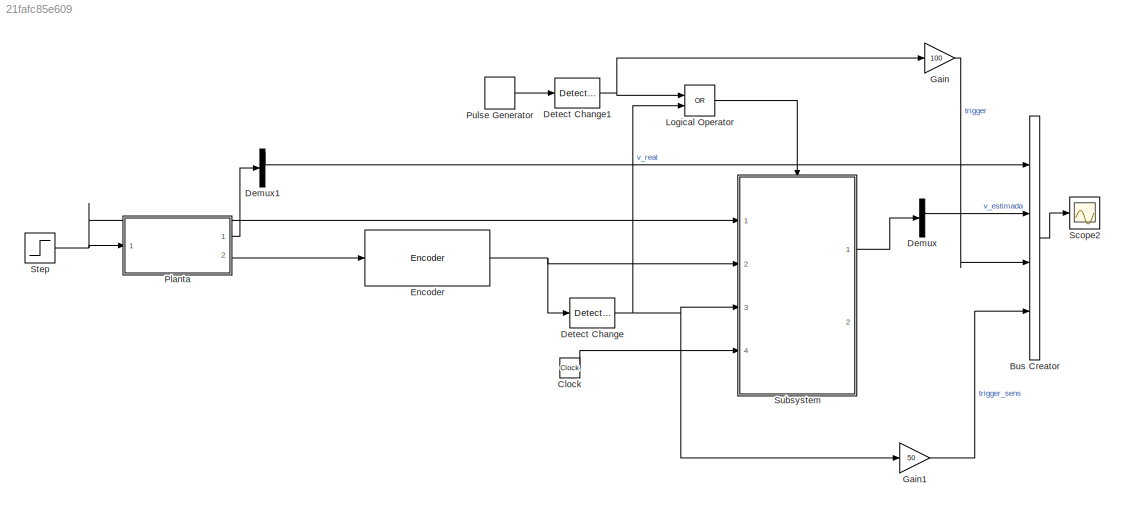
MODEL slx_21fafc85e609
KIND model
BLOCK [BusCreator] Bus Creator
  DisplayOption = bar
  Ports = [4, 1]
BLOCK [Clock] Clock
BLOCK [Demux] Demux
  DisplayOption = bar
  Outputs = 2
  Ports = [1, 2]
BLOCK [Demux] Demux1
  DisplayOption = bar
  Outputs = 2
  Ports = [1, 2]
BLOCK [Reference] Detect Change  REF=simulink/Logic and Bit
Operations/Detect
Change
  InputProcessing = Inherited
  OutDataTypeStr = boolean
  Ports = [1, 1]
  SourceBlock = simulink/Logic and Bit\nOperations/Detect\nChange
  SourceType = Detect Change
  vinit = 0
BLOCK [Reference] Detect Change1  REF=simulink/Logic and Bit
Operations/Detect
Change
  InputProcessing = Inherited
  OutDataTypeStr = boolean
  Ports = [1, 1]
  SourceBlock = simulink/Logic and Bit\nOperations/Detect\nChange
  SourceType = Detect Change
  vinit = 0
BLOCK [Reference] Encoder  REF=Encoder/Encoder
  Nr = 3
  Ports = [1, 1]
  SourceBlock = Encoder/Encoder
  SourceType = Encoder de quadratura
BLOCK [Gain] Gain
  Gain = 100
  OutDataTypeStr = double
  ParamDataTypeStr = Inherit: Inherit via internal rule
  SaturateOnIntegerOverflow = off
BLOCK [Gain] Gain1
  Gain = 50
  OutDataTypeStr = double
  ParamDataTypeStr = Inherit: Inherit via internal rule
  SaturateOnIntegerOverflow = off
BLOCK [Logic] Logical Operator
  AllPortsSameDT = off
  Operator = OR
  OutDataTypeStr = boolean
  Ports = [2, 1]
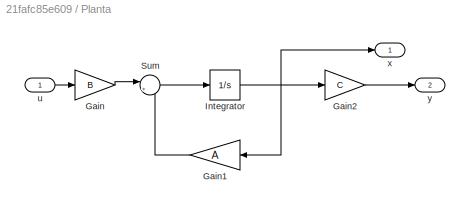
BLOCK [SubSystem] Planta
  FunctionWithSeparateData = off
  MaskHideContents = off
  MinAlgLoopOccurrences = off
  Opaque = off
  Ports = [1, 2]
  PropExecContextOutsideSubsystem = off
  RTWSystemCode = Auto
  RequestExecContextInheritance = off
BLOCK [Gain] Planta/Gain
  Gain = B
  Multiplication = Matrix(K*u)
  OutDataTypeStr = Inherit: Inherit via internal rule
  ParamDataTypeStr = Inherit: Inherit via internal rule
  SaturateOnIntegerOverflow = off
BLOCK [Gain] Planta/Gain1
  Gain = A
  Multiplication = Matrix(K*u)
  OutDataTypeStr = Inherit: Inherit via internal rule
  ParamDataTypeStr = Inherit: Inherit via internal rule
  SaturateOnIntegerOverflow = off
BLOCK [Gain] Planta/Gain2
  Gain = C
  Multiplication = Matrix(K*u)
  OutDataTypeStr = Inherit: Inherit via internal rule
  ParamDataTypeStr = Inherit: Inherit via internal rule
  SaturateOnIntegerOverflow = off
BLOCK [Integrator] Planta/Integrator
  Ports = [1, 1]
BLOCK [Sum] Planta/Sum
  IconShape = round
  InputSameDT = off
  Inputs = |++
  OutDataTypeStr = Inherit: Inherit via internal rule
  Ports = [2, 1]
  SaturateOnIntegerOverflow = off
BLOCK [Inport] Planta/u
  IconDisplay = Port number
BLOCK [Outport] Planta/x
  IconDisplay = Port number
BLOCK [Outport] Planta/y
  IconDisplay = Port number
  Port = 2
BLOCK [DiscretePulseGenerator] Pulse Generator
  Period = 0.3
  Ports = [0, 1]
  PulseType = Time based
  PulseWidth = 50
BLOCK [Scope] Scope2
  DataFormat = StructureWithTime
  Floating = off
  LegendLocations = 0.92595     0.92617    0.059896    0.067945
  LimitDataPoints = off
  NumInputPorts = 1
  Ports = [1]
  SampleTime = 0
  ShowLegends = on
  YMax = 100
  YMin = -250
BLOCK [Step] Step
  After = -5
  Before = 5
  SampleTime = 0
  Time = 5
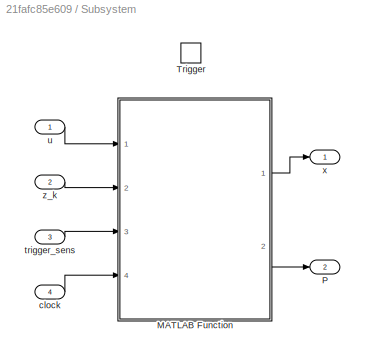
BLOCK [SubSystem] Subsystem
  FunctionWithSeparateData = off
  MaskHideContents = off
  MinAlgLoopOccurrences = off
  Opaque = off
  Ports = [4, 2, 0, 1]
  PropExecContextOutsideSubsystem = off
  RTWSystemCode = Auto
  RequestExecContextInheritance = off
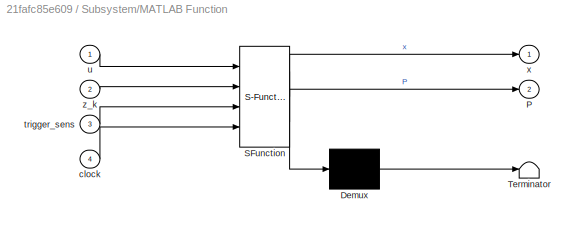
BLOCK [SubSystem] Subsystem/MATLAB Function
  ErrorFcn = Stateflow.Translate.translate
  FunctionWithSeparateData = off
  MaskHideContents = off
  MinAlgLoopOccurrences = off
  Opaque = off
  PermitHierarchicalResolution = ExplicitOnly
  Ports = [4, 2]
  PropExecContextOutsideSubsystem = off
  RTWSystemCode = Auto
  RequestExecContextInheritance = off
  SFBlockType = MATLAB Function
  TreatAsAtomicUnit = on
BLOCK [Demux] Subsystem/MATLAB Function/ Demux 
  Outputs = 1
  Ports = [1, 1]
BLOCK [S-Function] Subsystem/MATLAB Function/ SFunction 
  EnableBusSupport = on
  FunctionName = sf_sfun
  PortCounts = [4 3]
  Ports = [4, 3]
  Tag = Stateflow S-Function filtro_kalman 2
BLOCK [Terminator] Subsystem/MATLAB Function/ Terminator 
BLOCK [Outport] Subsystem/MATLAB Function/P
  IconDisplay = Port number
  Port = 2
BLOCK [Inport] Subsystem/MATLAB Function/clock
  IconDisplay = Port number
  Port = 4
BLOCK [Inport] Subsystem/MATLAB Function/trigger_sens
  IconDisplay = Port number
  Port = 3
BLOCK [Inport] Subsystem/MATLAB Function/u
  IconDisplay = Port number
BLOCK [Outport] Subsystem/MATLAB Function/x
  IconDisplay = Port number
BLOCK [Inport] Subsystem/MATLAB Function/z_k
  IconDisplay = Port number
  Port = 2
BLOCK [Outport] Subsystem/P
  IconDisplay = Port number
  Port = 2
BLOCK [TriggerPort] Subsystem/Trigger
  PortDimensions = 1
  Ports = []
  StatesWhenEnabling = held
BLOCK [Inport] Subsystem/clock
  IconDisplay = Port number
  Port = 4
BLOCK [Inport] Subsystem/trigger_sens
  IconDisplay = Port number
  Port = 3
BLOCK [Inport] Subsystem/u
  IconDisplay = Port number
BLOCK [Outport] Subsystem/x
  IconDisplay = Port number
BLOCK [Inport] Subsystem/z_k 
  IconDisplay = Port number
  Port = 2
LINE Bus Creator:1 -> Scope2:1
LINE Clock:1 -> Subsystem:4
LINE Demux1:1 -> Bus Creator:1
LINE Demux:1 -> Bus Creator:2
NET Detect Change1:1 -> Gain:1, Logical Operator:1
NET Detect Change:1 -> Gain1:1, Logical Operator:2, Subsystem:3
NET Encoder:1 -> Detect Change:1, Subsystem:2
LINE Gain1:1 -> Bus Creator:4
LINE Gain:1 -> Bus Creator:3
LINE Logical Operator:1 -> Subsystem:trigger
LINE Planta/Gain1:1 -> Planta/Sum:2
LINE Planta/Gain2:1 -> Planta/y:1
LINE Planta/Gain:1 -> Planta/Sum:1
NET Planta/Integrator:1 -> Planta/Gain1:1, Planta/Gain2:1, Planta/x:1
LINE Planta/Sum:1 -> Planta/Integrator:1
LINE Planta/u:1 -> Planta/Gain:1
LINE Planta:1 -> Demux1:1
LINE Planta:2 -> Encoder:1
LINE Pulse Generator:1 -> Detect Change1:1
NET Step:1 -> Planta:1, Subsystem:1
LINE Subsystem/MATLAB Function:1 -> Subsystem/x:1
LINE Subsystem/MATLAB Function:2 -> Subsystem/P:1
LINE Subsystem/clock:1 -> Subsystem/MATLAB Function:4
LINE Subsystem/trigger_sens:1 -> Subsystem/MATLAB Function:3
LINE Subsystem/u:1 -> Subsystem/MATLAB Function:1
LINE Subsystem/z_k :1 -> Subsystem/MATLAB Function:2
LINE Subsystem:1 -> Demux:1
note: NET lines group one-source signal fan-out (src -> all destinations, sorted); 1:1 wires keep LINE
